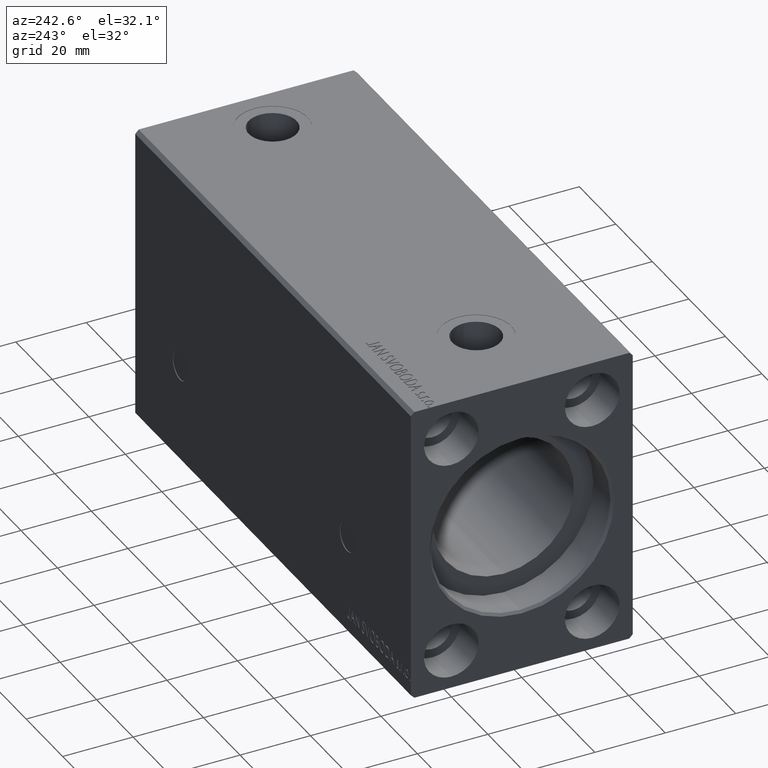
[diagram: clean part render]
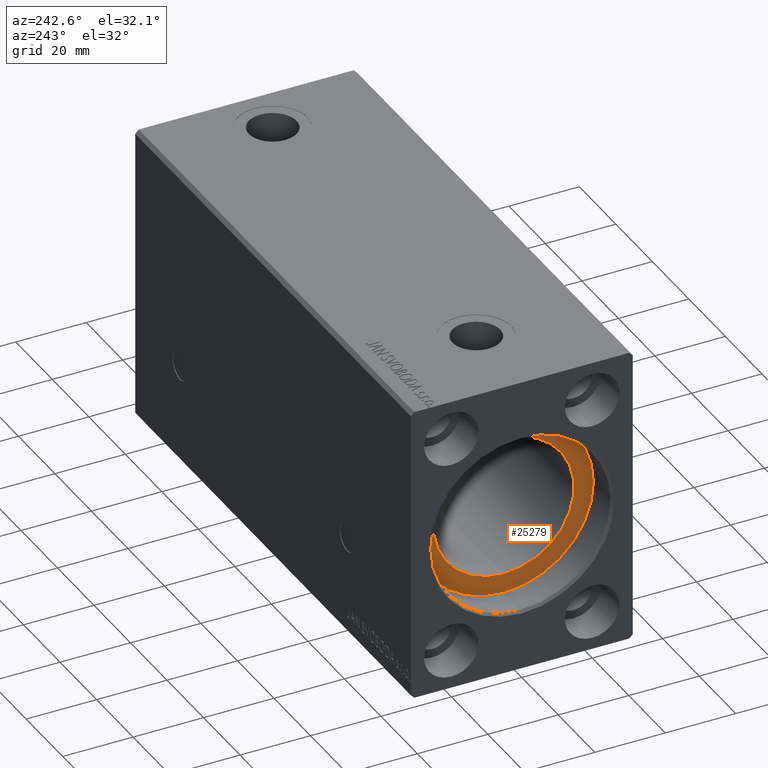
[diagram: same view with one face highlighted and labeled with its STEP entity id]
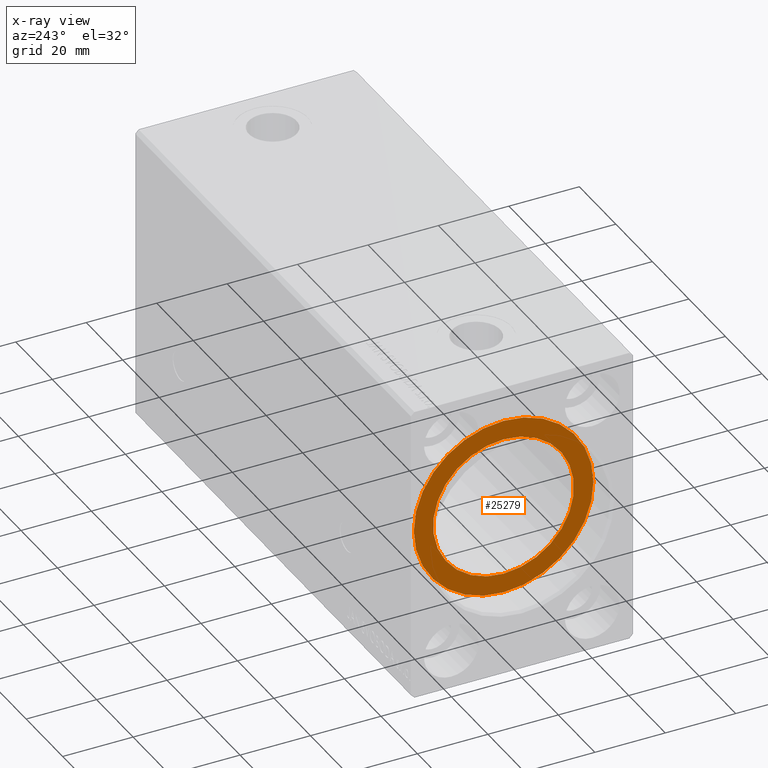
[diagram: x-ray of the same camera — body ghosted, the highlighted face saturated]
A machine part, auxiliary view. The second image highlights one B-rep face of the part: STEP entity #25279.
The next image is the same camera in x-ray: the body ghosted, the highlighted face saturated — about 0% of this face is hidden behind the body in this view.
In plain terms, the highlighted planar face has unit normal (-1, 0, 0).
Its self-contained STEP definition (entity closure, byte-faithful):
#1641 = DIRECTION ( 'NONE',  ( 0.000000000000000000, 0.000000000000000000, 1.000000000000000000 ) ) ;
#1971 = ORIENTED_EDGE ( 'NONE', *, *, #40758, .F. ) ;
#3903 = DIRECTION ( 'NONE',  ( -1.000000000000000000, 0.000000000000000000, 0.000000000000000000 ) ) ;
#3999 = VERTEX_POINT ( 'NONE', #20326 ) ;
#7285 = ORIENTED_EDGE ( 'NONE', *, *, #10249, .F. ) ;
#7469 = EDGE_CURVE ( 'NONE', #41849, #39468, #39698, .T. ) ;
#8729 = FACE_OUTER_BOUND ( 'NONE', #25259, .T. ) ;
#9113 = CARTESIAN_POINT ( 'NONE',  ( 10.00000000000000000, 3.122849337825750222E-15, -25.50000000000000000 ) ) ;
#9217 = DIRECTION ( 'NONE',  ( 0.000000000000000000, 0.000000000000000000, 1.000000000000000000 ) ) ;
#10249 = EDGE_CURVE ( 'NONE', #11227, #3999, #40431, .T. ) ;
#11227 = VERTEX_POINT ( 'NONE', #17640 ) ;
#12687 = DIRECTION ( 'NONE',  ( 0.000000000000000000, 0.000000000000000000, 1.000000000000000000 ) ) ;
#14530 = AXIS2_PLACEMENT_3D ( 'NONE', #24206, #41366, #1641 ) ;
#17449 = ORIENTED_EDGE ( 'NONE', *, *, #7469, .T. ) ;
#17640 = CARTESIAN_POINT ( 'NONE',  ( 10.00000000000000888, 0.000000000000000000, 20.00000000000000000 ) ) ;
#20003 = EDGE_LOOP ( 'NONE', ( #7285, #1971 ) ) ;
#20326 = CARTESIAN_POINT ( 'NONE',  ( 10.00000000000000888, 2.449293598294706513E-15, -20.00000000000000000 ) ) ;
#23743 = CARTESIAN_POINT ( 'NONE',  ( 10.00000000000000000, 0.000000000000000000, 25.50000000000000000 ) ) ;
#23915 = AXIS2_PLACEMENT_3D ( 'NONE', #35210, #26192, #9217 ) ;
#24151 = ORIENTED_EDGE ( 'NONE', *, *, #30846, .T. ) ;
#24206 = CARTESIAN_POINT ( 'NONE',  ( 10.00000000000000000, 0.000000000000000000, 0.000000000000000000 ) ) ;
#24231 = CARTESIAN_POINT ( 'NONE',  ( 10.00000000000000000, 0.000000000000000000, 0.000000000000000000 ) ) ;
#25259 = EDGE_LOOP ( 'NONE', ( #24151, #17449 ) ) ;
#25279 = ADVANCED_FACE ( 'NONE', ( #38164, #8729 ), #28498, .T. ) ;
#26192 = DIRECTION ( 'NONE',  ( -1.000000000000000000, 0.000000000000000000, 0.000000000000000000 ) ) ;
#28498 = PLANE ( 'NONE',  #38580 ) ;
#29172 = AXIS2_PLACEMENT_3D ( 'NONE', #41485, #38890, #12687 ) ;
#30540 = DIRECTION ( 'NONE',  ( 0.000000000000000000, 0.000000000000000000, 1.000000000000000000 ) ) ;
#30846 = EDGE_CURVE ( 'NONE', #39468, #41849, #40587, .T. ) ;
#33334 = CARTESIAN_POINT ( 'NONE',  ( 10.00000000000000888, 0.000000000000000000, 0.000000000000000000 ) ) ;
#34091 = DIRECTION ( 'NONE',  ( 0.000000000000000000, 0.000000000000000000, 1.000000000000000000 ) ) ;
#35210 = CARTESIAN_POINT ( 'NONE',  ( 10.00000000000000000, 0.000000000000000000, 0.000000000000000000 ) ) ;
#35629 = AXIS2_PLACEMENT_3D ( 'NONE', #33334, #3903, #30540 ) ;
#36031 = CIRCLE ( 'NONE', #29172, 20.00000000000000000 ) ;
#37335 = DIRECTION ( 'NONE',  ( -1.000000000000000000, 0.000000000000000000, 0.000000000000000000 ) ) ;
#38164 = FACE_BOUND ( 'NONE', #20003, .T. ) ;
#38580 = AXIS2_PLACEMENT_3D ( 'NONE', #24231, #37335, #34091 ) ;
#38890 = DIRECTION ( 'NONE',  ( -1.000000000000000000, 0.000000000000000000, 0.000000000000000000 ) ) ;
#39468 = VERTEX_POINT ( 'NONE', #23743 ) ;
#39698 = CIRCLE ( 'NONE', #23915, 25.50000000000000000 ) ;
#40431 = CIRCLE ( 'NONE', #35629, 20.00000000000000000 ) ;
#40587 = CIRCLE ( 'NONE', #14530, 25.50000000000000000 ) ;
#40758 = EDGE_CURVE ( 'NONE', #3999, #11227, #36031, .T. ) ;
#41366 = DIRECTION ( 'NONE',  ( -1.000000000000000000, 0.000000000000000000, 0.000000000000000000 ) ) ;
#41485 = CARTESIAN_POINT ( 'NONE',  ( 10.00000000000000888, 0.000000000000000000, 0.000000000000000000 ) ) ;
#41849 = VERTEX_POINT ( 'NONE', #9113 ) ;